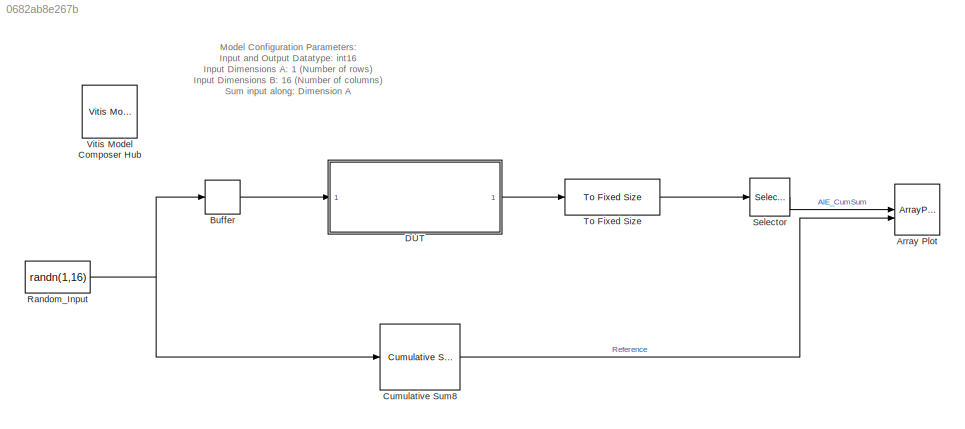
MODEL slx_0682ab8e267b
KIND model
CONFIG AbsTol = auto
CONFIG EnableMultiTasking = off
CONFIG FixedStep = auto
CONFIG MaxStep = auto
CONFIG MinStep = auto
CONFIG RelTol = 1e-3
CONFIG SampleTimeConstraint = Unconstrained
CONFIG SolverName = VariableStepAuto
CONFIG StartTime = 0.0
CONFIG StopTime = 511
BLOCK [ArrayPlot] Array Plot
  GraphicalSettings = {"Style":{"BackgroundColor":[0.12941176470588237,0.12941176470588237,0.12941176470588237],"AxesColor":[0.070588235294117646,0.070588235294117646,0.070588235294117646],"LabelsColor":[0.85098039215686272,0.85098039215686272,0.85098039215686272],"PreserveColors":false,"Visible":[true,true],"LineStyle":["-","-"],"LineWidth":[1.5,1.5],"BarWidth":[0.9,0.9],"LineColor":[[1,0.90980392156862744,0.392156862...<+177ch>
  NumInputPorts = 2
  ScopeFrameLocation = window
  ShowLegend = on
  Visible = on
  WasSavedAsWebScope = on
  WindowPosition = [560.000000,350.000000,800.000000,500.000000,]
  YLimits = [-0.375 13.375]
BLOCK [Buffer] Buffer
  N = 256
  OutputFrames = off
BLOCK [Reference] Cumulative Sum8  REF=dspmathops/Cumulative
Sum
  SourceBlock = dspmathops/Cumulative\nSum
  SourceType = Cumulative Sum
  UserDataPersistent = on
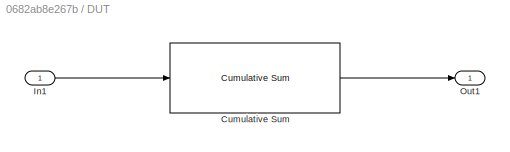
BLOCK [SubSystem] DUT
BLOCK [Reference] DUT/Cumulative Sum  REF=aieDSP/Cumulative Sum
  SourceBlock = aieDSP/Cumulative Sum
  SourceType = Cumulative Sum
BLOCK [Inport] DUT/In1
BLOCK [Outport] DUT/Out1
BLOCK [Constant] Random_Input
  OutDataTypeStr = int16
  SampleTime = 1
  Value = randn(1,16)
BLOCK [Selector] Selector
  IndexOptions = Index vector (dialog)
  Indices = [1:1:16]
  InputPortWidth = 256
  OutputSizes = 1
BLOCK [Reference] To Fixed Size  REF=aieUtilities/To Fixed Size
  SourceBlock = aieUtilities/To Fixed Size
  SourceType = To Fixed Size
BLOCK [Reference] Vitis Model Composer Hub  REF=vmcUtilities/Vitis Model Composer Hub
  SourceBlock = vmcUtilities/Vitis Model Composer Hub
  SourceType = VMC Hub
  Tag = genX
  UserDataPersistent = on
ANNOTATION (root): Model Configuration Parameters: Input and Output Datatype: int16 Input Dimensions A: 1 (Number of rows) Input Dimensions B: 16 (Number of columns) Sum input along: Dimension A
LINE Buffer:1 -> DUT:1
LINE Cumulative Sum8:1 -> Array Plot:2
LINE DUT/Cumulative Sum:1 -> DUT/Out1:1
LINE DUT/In1:1 -> DUT/Cumulative Sum:1
LINE DUT:1 -> To Fixed Size:1
NET Random_Input:1 -> Buffer:1, Cumulative Sum8:1
LINE Selector:1 -> Array Plot:1
LINE To Fixed Size:1 -> Selector:1
note: NET lines group one-source signal fan-out (src -> all destinations, sorted); 1:1 wires keep LINE
